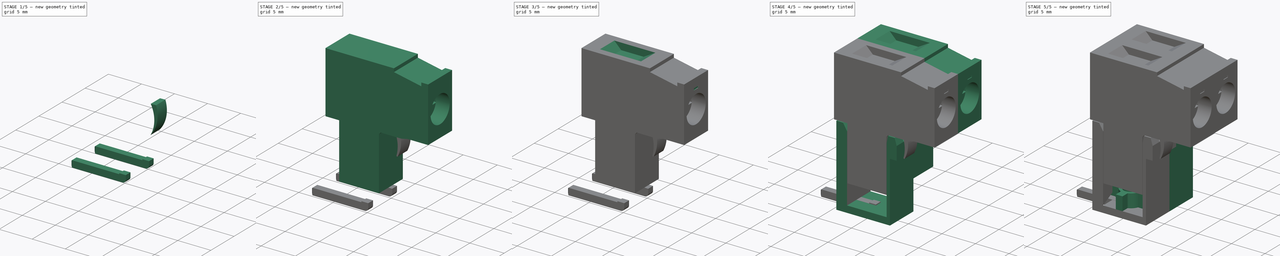
[diagram: build sequence overview — one tinted view per stage of 5, left to right]
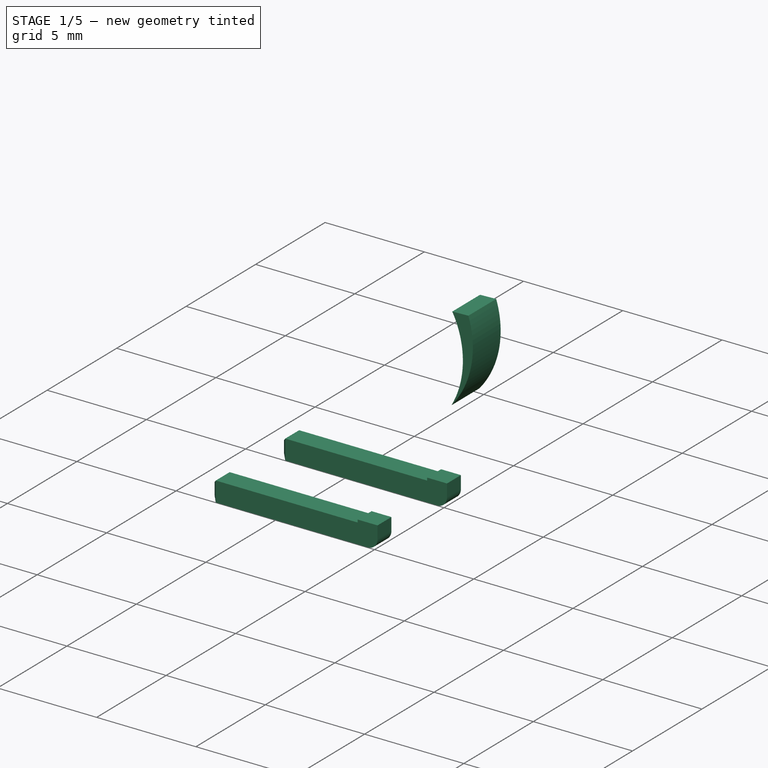
[diagram: stage 1 of 5 — iso view after this stage's code; geometry added in this stage tinted green]
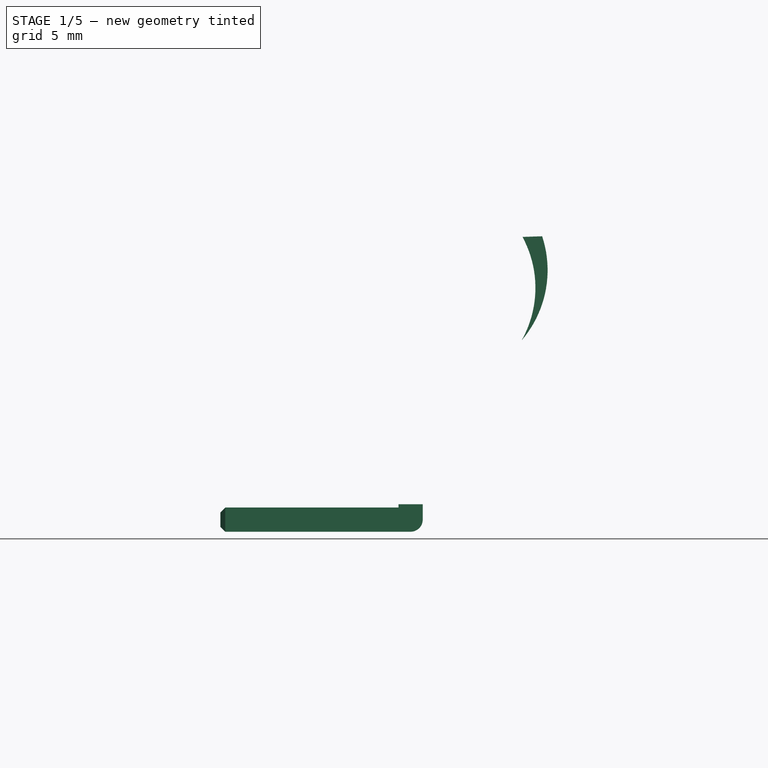
[diagram: stage 1 of 5 — front view after this stage's code; geometry added in this stage tinted green]
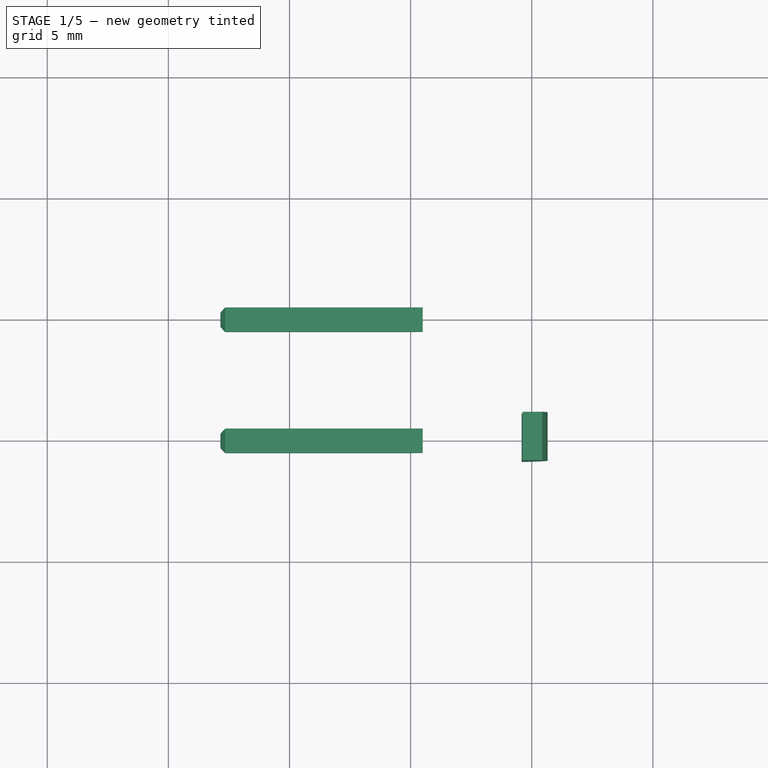
[diagram: stage 1 of 5 — top view after this stage's code; geometry added in this stage tinted green]
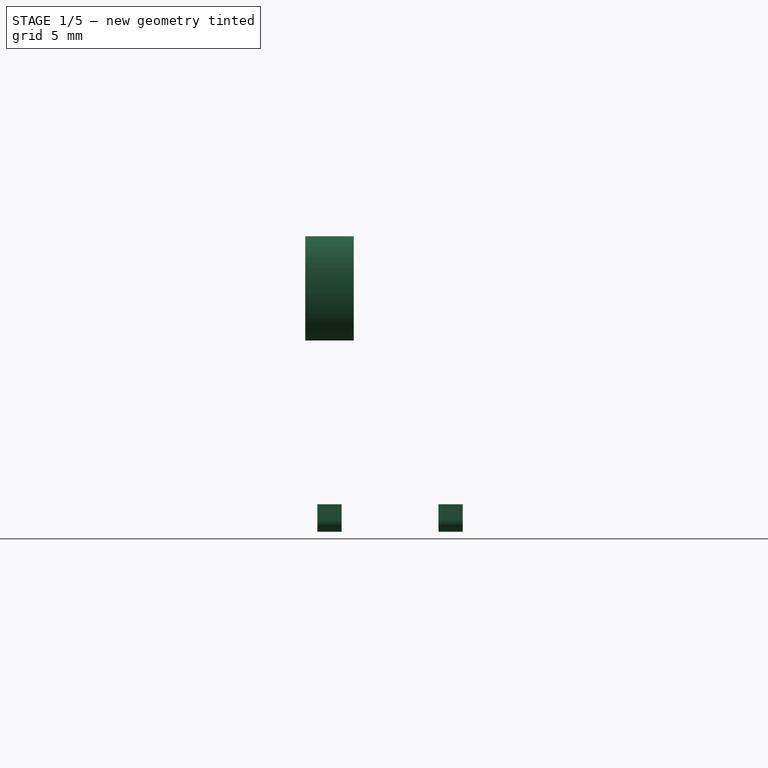
[diagram: stage 1 of 5 — right view after this stage's code; geometry added in this stage tinted green]
FCSTD DOCUMENT  (FreeCAD 0.18R16131 (Git))
Label: MSTBA2_H
License: All rights reserved
LicenseURL: http://en.wikipedia.org/wiki/All_rights_reserved
objects: Sketcher::SketchObject×15, PartDesign::Pocket×8, PartDesign::Pad×5, App::DocumentObjectGroup×3, Part::FeaturePython×3, PartDesign::Draft×2, PartDesign::Fillet×2, Spreadsheet::Sheet×1, Part::MultiFuse×1, Part::Sweep×1, PartDesign::Chamfer×1
note: 51 computed .brp shape members not serialized (recipe doc carries the construction recipe); baked Part::Feature solids carry a one-line shape summary decoded from their .brp

FEATURE [Sketcher::SketchObject] Sketch013
  MapMode = 5
  Placement = pos=(0,0,0) rot=(1,0,0;1.5708rad)
  sketch-geometry (3):
    g0: ArcOfCircle CenterX=1.19032 CenterY=10.8049 CenterZ=0 NormalX=0 NormalY=0 NormalZ=1 AngleXU=0 Radius=4.46344 StartAngle=5.57496 EndAngle=6.60169
    g1: ArcOfCircle CenterX=0.741119 CenterY=10.0718 CenterZ=0 NormalX=0 NormalY=0 NormalZ=1 AngleXU=0 Radius=4.41026 StartAngle=5.76866 EndAngle=6.78056
    g2: LineSegment StartX=4.61703 StartY=12.176 StartZ=0 EndX=5.42927 EndY=12.2026 EndZ=0
  constraints (3):
    c: Coincident(g1,g0)
    c: Coincident(g2,g1)
    c: Coincident(g2,g0)
FEATURE [PartDesign::Pad] Pad005
  Length = 2
  Length2 = 100
  Midplane = true
  Placement = pos=(0,0,0) rot=(1,0,0;1.5708rad)
  Profile = -> Sketch013
  Type = 0
FEATURE [Sketcher::SketchObject] Sketch014
  MapMode = 5
  Placement = pos=(0,0,0) rot=(1,0,0;1.5708rad)
  sketch-geometry (2):
    g0: LineSegment StartX=0 StartY=1.14216 StartZ=0 EndX=0 EndY=0.507006 EndZ=0
    g1: LineSegment StartX=0 StartY=0.507006 StartZ=0 EndX=-7.85076 EndY=0.507006 EndZ=0
  constraints (4):
    c: Vertical(g0)
    c: Coincident(g0,g1)
    c: Horizontal(g1)
    c: PointOnObject(g0,g-2)
FEATURE [Part::Sweep] Sweep
  Frenet = false
  Sections = -> [Sketch002]
  Solid = true
  Spine = -> Sketch014 [Edge1,Edge2]
  Transition = 1
FEATURE [PartDesign::Fillet] Fillet001
  Base = -> Sweep [Edge7]
  Radius = 0.5
FEATURE [PartDesign::Chamfer] Chamfer
  Base = -> Fillet001 [Edge17,Edge24,Edge22,Edge25]
  Size = 0.2
FEATURE [App::DocumentObjectGroup] Group  label="pin"
  Group = -> [Sketch002,Sketch014,Sweep,Fillet001,Chamfer]
FEATURE [Part::FeaturePython] Array  # Draft array (typed FeaturePython)
  Angle = 360
  ArrayType = 0
  Axis = (0,0,1)
  Base = -> Chamfer
  Center = (0,0,0)
  Fuse = false
  IntervalAxis = (0,0,0)
  IntervalX = (1,0,0)
  IntervalY = (0,5,0)
  IntervalZ = (0,0,0)
  NumberPolar = 1
  NumberX = 1
  NumberY = 2
  NumberZ = 1
  expr: NumberY = Spreadsheet.B1
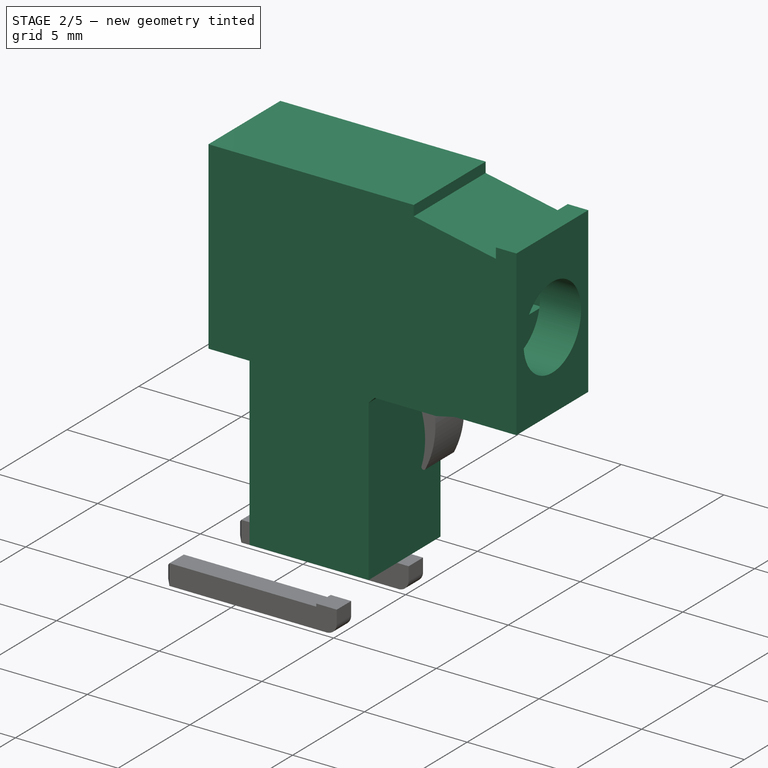
[diagram: stage 2 of 5 — iso view after this stage's code; geometry added in this stage tinted green]
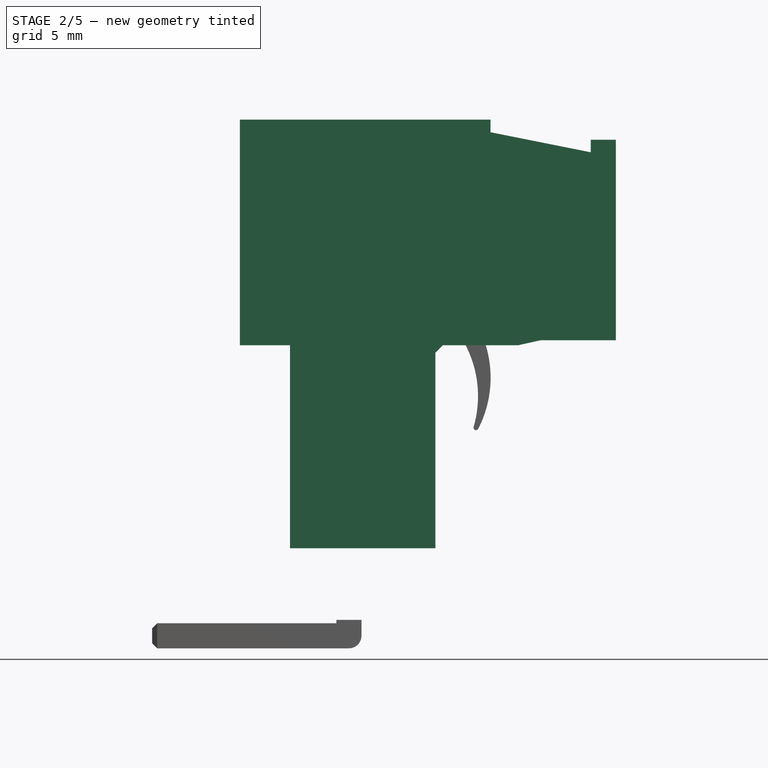
[diagram: stage 2 of 5 — front view after this stage's code; geometry added in this stage tinted green]
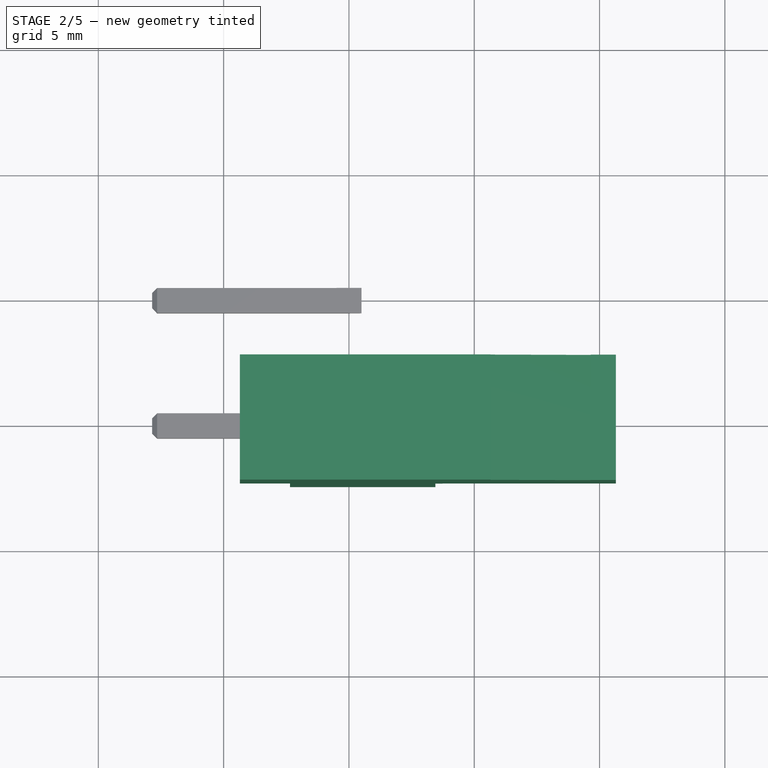
[diagram: stage 2 of 5 — top view after this stage's code; geometry added in this stage tinted green]
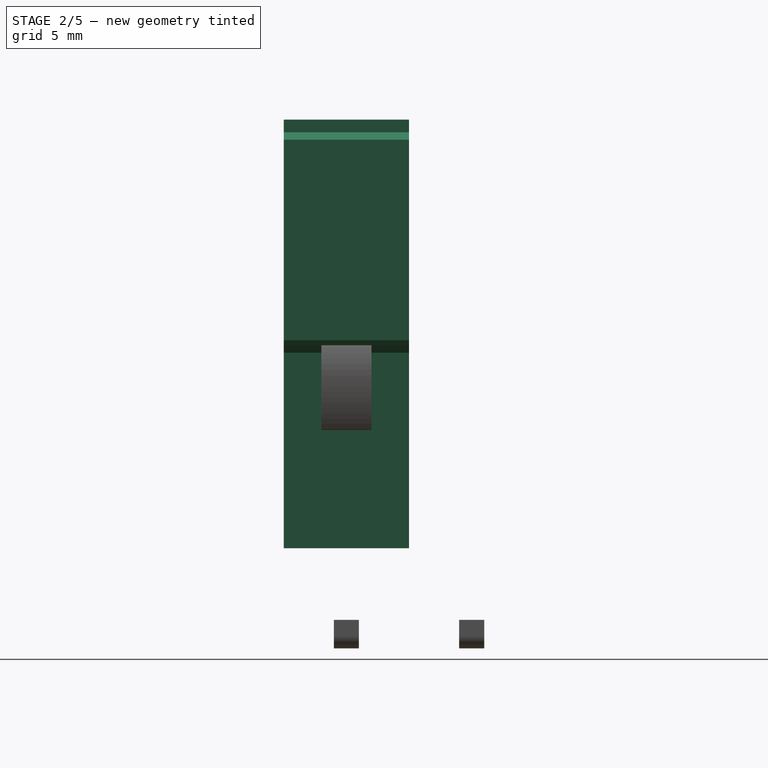
[diagram: stage 2 of 5 — right view after this stage's code; geometry added in this stage tinted green]
FEATURE [Sketcher::SketchObject] Sketch008
  MapMode = 5
  Placement = pos=(0,0,0) rot=(1,0,0;1.5708rad)
  sketch-geometry (15):
    g0: LineSegment StartX=-2.35 StartY=4 StartZ=0 EndX=-2.35 EndY=12.1 EndZ=0
    g1: LineSegment StartX=-2.35 StartY=12.1 StartZ=0 EndX=-4.35 EndY=12.1 EndZ=0
    g2: LineSegment StartX=-4.35 StartY=12.1 StartZ=0 EndX=-4.35 EndY=21.1 EndZ=0
    g3: LineSegment StartX=-4.35 StartY=21.1 StartZ=0 EndX=5.65 EndY=21.1 EndZ=0
    g4: LineSegment StartX=9.65 StartY=19.8 StartZ=0 EndX=9.65 EndY=20.3 EndZ=0
    g5: LineSegment StartX=9.65 StartY=20.3 StartZ=0 EndX=10.65 EndY=20.3 EndZ=0
    g6: LineSegment StartX=10.65 StartY=20.3 StartZ=0 EndX=10.65 EndY=12.3 EndZ=0
    g7: LineSegment StartX=10.65 StartY=12.3 StartZ=0 EndX=7.65 EndY=12.3 EndZ=0
    g8: LineSegment StartX=7.65 StartY=12.3 StartZ=0 EndX=6.75 EndY=12.1 EndZ=0
    g9: LineSegment StartX=6.75 StartY=12.1 StartZ=0 EndX=3.75 EndY=12.1 EndZ=0
    g10: LineSegment StartX=3.75 StartY=12.1 StartZ=0 EndX=3.45 EndY=11.8 EndZ=0
    g11: LineSegment StartX=3.45 StartY=11.8 StartZ=0 EndX=3.45 EndY=4 EndZ=0
    g12: LineSegment StartX=3.45 StartY=4 StartZ=0 EndX=-2.35 EndY=4 EndZ=0
    g13: LineSegment StartX=5.65 StartY=21.1 StartZ=0 EndX=5.65 EndY=20.6 EndZ=0
    g14: LineSegment StartX=5.65 StartY=20.6 StartZ=0 EndX=9.65 EndY=19.8 EndZ=0
  constraints (45):
    c: Vertical(g0)
    c: Coincident(g0,g1)
    c: Horizontal(g1)
    c: Coincident(g1,g2)
    c: Vertical(g2)
    c: Coincident(g2,g3)
    c: Horizontal(g3)
    c: Coincident(g4,g5)
    c: Horizontal(g5)
    c: Coincident(g5,g6)
    c: Vertical(g6)
    c: Coincident(g6,g7)
    c: Horizontal(g7)
    c: Coincident(g7,g8)
    c: Coincident(g8,g9)
    c: Coincident(g9,g10)
    c: Coincident(g10,g11)
    c: Vertical(g11)
    c: Coincident(g11,g12)
    c: Coincident(g12,g0)
    c: Horizontal(g12)
    c: Horizontal(g9)
    c: Vertical(g4)
    c: DistanceY(g-1,g11) = 4
    c: DistanceX(g12) = -5.8
    c: DistanceX(g-1,g0) = -2.35
    c: DistanceY(g-1,g1) = 12.1
    c: DistanceY(g-1,g8) = 12.1
    c: DistanceY(g-1,g6) = 12.3
    c: DistanceY(g2) = 9
    c: DistanceX(g3) = 10
    c: DistanceY(g6) = -8
    c: DistanceX(g5) = 1
    c: DistanceY(g4) = 0.5
    c: Coincident(g3,g13)
    c: Coincident(g13,g14)
    c: Coincident(g14,g4)
    c: Vertical(g13)
    c: DistanceY(g13) = -0.5
    c: DistanceX(g2,g5) = 15
    c: DistanceX(g1) = -2
    c: DistanceX(g7) = -3
    c: DistanceX(g9) = -3
    c: DistanceY(g9,g10) = -0.3
    c: DistanceX(g9,g10) = -0.3
FEATURE [PartDesign::Pad] Pad004
  Length = 5
  Length2 = 100
  Midplane = true
  Placement = pos=(0,0,0) rot=(1,0,0;1.5708rad)
  Profile = -> Sketch008
  Type = 0
FEATURE [Sketcher::SketchObject] Sketch009
  ExternalGeometry = -> [Pad004]
  MapMode = 5
  Placement = pos=(10.65,0,0) rot=(0.707107,0,0.707107;3.14159rad)
  Support = -> [Pad004]
  sketch-geometry (1):
    g0: Circle CenterX=16.1 CenterY=0 CenterZ=0 NormalX=0 NormalY=0 NormalZ=1 AngleXU=0 Radius=2
  constraints (3):
    c: PointOnObject(g0,g-1)
    c: Radius(g0) = 2
    c: DistanceX(g-3,g0) = -5
FEATURE [PartDesign::Pocket] Pocket004
  Length = 2
  Length2 = 100
  Placement = pos=(0,0,0) rot=(1,0,0;1.5708rad)
  Profile = -> Sketch009
  Type = 0
FEATURE [Sketcher::SketchObject] Sketch010
  MapMode = 5
  Placement = pos=(8.65,0,0) rot=(0.707107,0,0.707107;3.14159rad)
  Support = -> [Pocket004]
  sketch-geometry (4):
    g0: LineSegment StartX=15.649 StartY=2.09387 StartZ=0 EndX=16.547 EndY=2.09387 EndZ=0
    g1: LineSegment StartX=16.547 StartY=2.09387 StartZ=0 EndX=16.547 EndY=-2.12596 EndZ=0
    g2: LineSegment StartX=16.547 StartY=-2.12596 StartZ=0 EndX=15.649 EndY=-2.12596 EndZ=0
    g3: LineSegment StartX=15.649 StartY=-2.12596 StartZ=0 EndX=15.649 EndY=2.09387 EndZ=0
  constraints (8):
    c: Coincident(g0,g1)
    c: Coincident(g1,g2)
    c: Coincident(g2,g3)
    c: Coincident(g3,g0)
    c: Horizontal(g0)
    c: Horizontal(g2)
    c: Vertical(g1)
    c: Vertical(g3)
FEATURE [PartDesign::Pocket] Pocket005
  Length = 0.5
  Length2 = 100
  Placement = pos=(0,0,0) rot=(1,0,0;1.5708rad)
  Profile = -> Sketch010
  Type = 0
FEATURE [PartDesign::Fillet] Fillet
  Base = -> Pad005 [Edge1]
  Placement = pos=(0,0,0) rot=(1,0,0;1.5708rad)
  Radius = 0.1
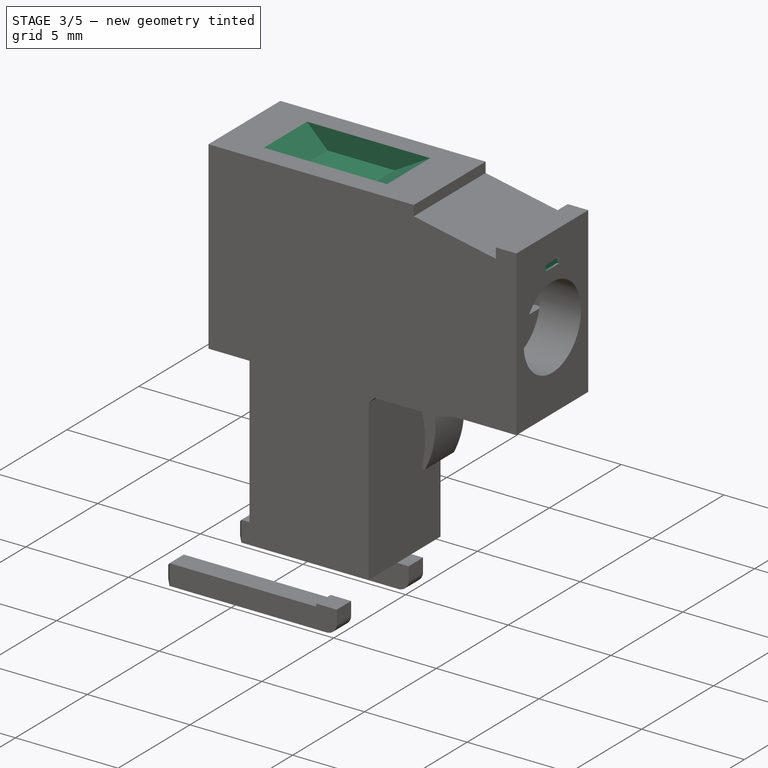
[diagram: stage 3 of 5 — iso view after this stage's code; geometry added in this stage tinted green]
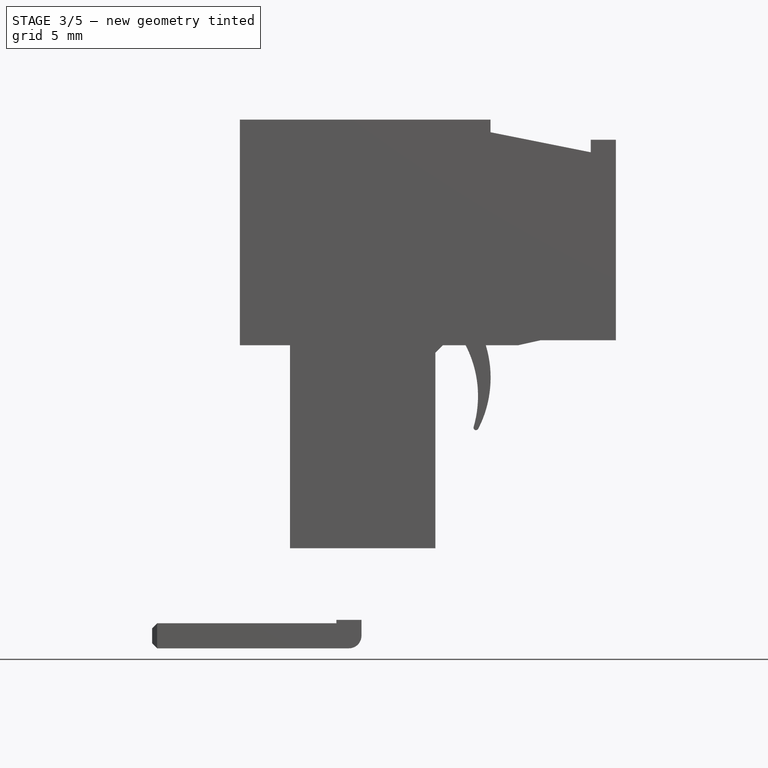
[diagram: stage 3 of 5 — front view after this stage's code; geometry added in this stage tinted green]
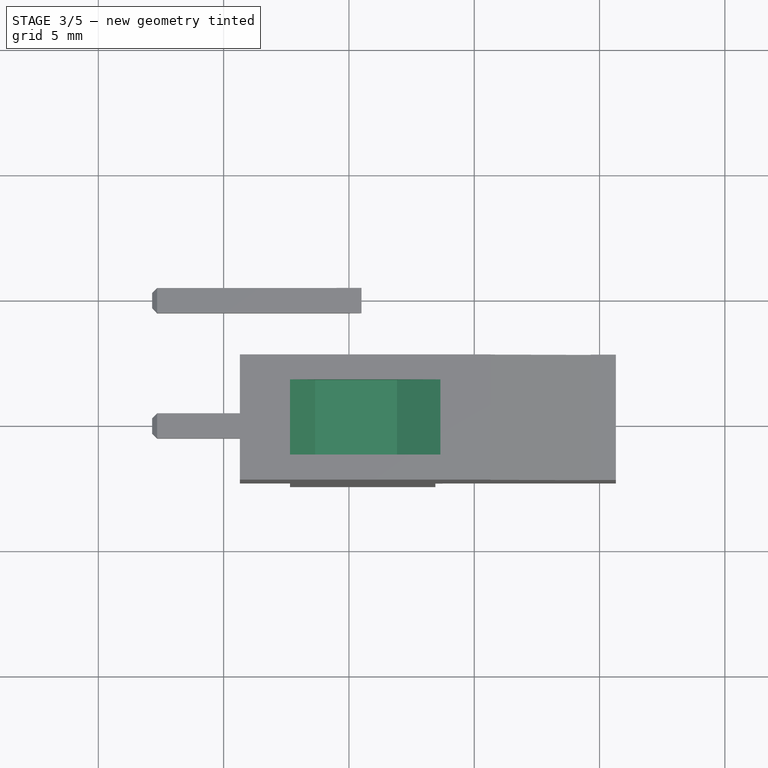
[diagram: stage 3 of 5 — top view after this stage's code; geometry added in this stage tinted green]
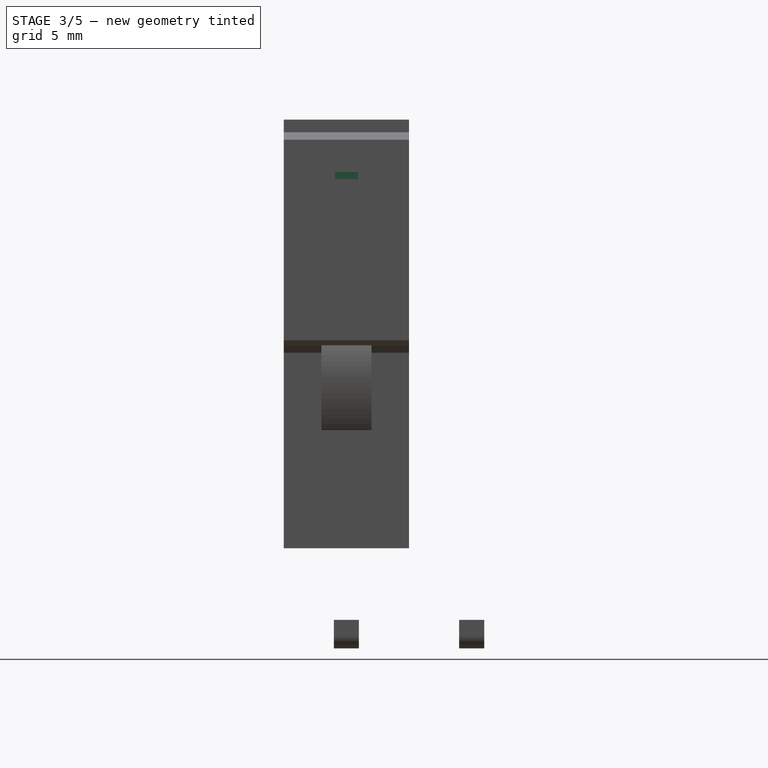
[diagram: stage 3 of 5 — right view after this stage's code; geometry added in this stage tinted green]
FEATURE [Sketcher::SketchObject] Sketch011
  MapMode = 5
  Placement = pos=(10.65,0,0) rot=(0.707107,0,0.707107;3.14159rad)
  Support = -> [Pocket005]
  sketch-geometry (4):
    g0: LineSegment StartX=18.7297 StartY=0.460835 StartZ=0 EndX=19.0153 EndY=0.460835 EndZ=0
    g1: LineSegment StartX=19.0153 StartY=0.460835 StartZ=0 EndX=19.0153 EndY=-0.460835 EndZ=0
    g2: LineSegment StartX=19.0153 StartY=-0.460835 StartZ=0 EndX=18.7297 EndY=-0.460835 EndZ=0
    g3: LineSegment StartX=18.7297 StartY=-0.460835 StartZ=0 EndX=18.7297 EndY=0.460835 EndZ=0
  constraints (9):
    c: Coincident(g0,g1)
    c: Coincident(g1,g2)
    c: Coincident(g2,g3)
    c: Coincident(g3,g0)
    c: Horizontal(g0)
    c: Horizontal(g2)
    c: Vertical(g1)
    c: Vertical(g3)
    c: Symmetric(g1,g0,g-1)
FEATURE [PartDesign::Pocket] Pocket006
  Length = 0.1
  Length2 = 100
  Placement = pos=(0,0,0) rot=(1,0,0;1.5708rad)
  Profile = -> Sketch011
  Type = 0
FEATURE [Sketcher::SketchObject] Sketch012
  ExternalGeometry = -> [Pocket006]
  MapMode = 5
  Placement = pos=(0,8.5e-15,21.1) rot=(0,0,1;3.14159rad)
  Support = -> [Pocket006]
  sketch-geometry (4):
    g0: LineSegment StartX=-3.65 StartY=1.5 StartZ=0 EndX=2.35 EndY=1.5 EndZ=0
    g1: LineSegment StartX=2.35 StartY=1.5 StartZ=0 EndX=2.35 EndY=-1.5 EndZ=0
    g2: LineSegment StartX=2.35 StartY=-1.5 StartZ=0 EndX=-3.65 EndY=-1.5 EndZ=0
    g3: LineSegment StartX=-3.65 StartY=-1.5 StartZ=0 EndX=-3.65 EndY=1.5 EndZ=0
  constraints (12):
    c: Coincident(g0,g1)
    c: Coincident(g1,g2)
    c: Coincident(g2,g3)
    c: Coincident(g3,g0)
    c: Horizontal(g0)
    c: Horizontal(g2)
    c: Vertical(g1)
    c: Vertical(g3)
    c: Symmetric(g0,g1,g-1)
    c: DistanceY(g1) = -3
    c: DistanceX(g0) = 6
    c: DistanceX(g-3,g0) = -2
FEATURE [PartDesign::Pocket] Pocket007
  Length = 1
  Length2 = 100
  Placement = pos=(0,0,0) rot=(1,0,0;1.5708rad)
  Profile = -> Sketch012
  Type = 0
FEATURE [PartDesign::Draft] Draft
  Angle = 60
  Base = -> Pocket007 [Face18]
  NeutralPlane = -> Pocket007 [Face8]
  Placement = pos=(0,0,0) rot=(1,0,0;1.5708rad)
FEATURE [PartDesign::Draft] Draft001
  Angle = 45
  Base = -> Draft [Face20]
  NeutralPlane = -> Draft [Face8]
  Placement = pos=(0,0,0) rot=(1,0,0;1.5708rad)
FEATURE [Part::MultiFuse] Fusion
  Shapes = -> [Draft001,Fillet]
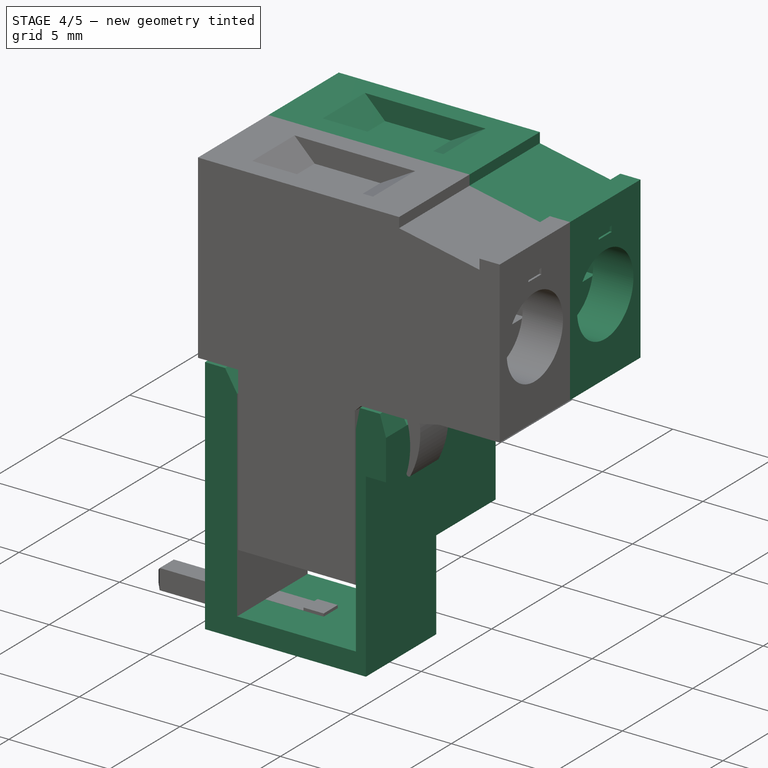
[diagram: stage 4 of 5 — iso view after this stage's code; geometry added in this stage tinted green]
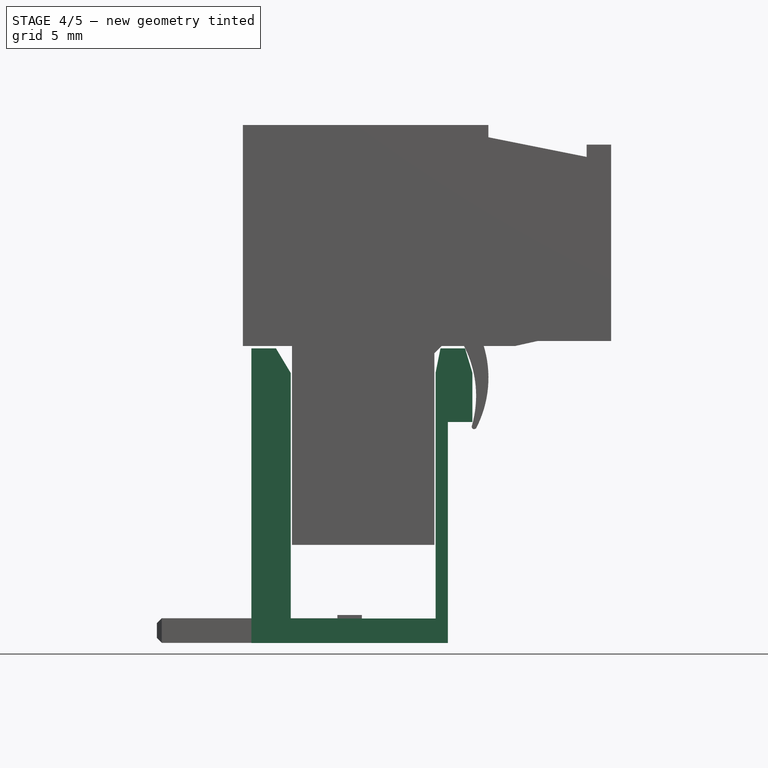
[diagram: stage 4 of 5 — front view after this stage's code; geometry added in this stage tinted green]
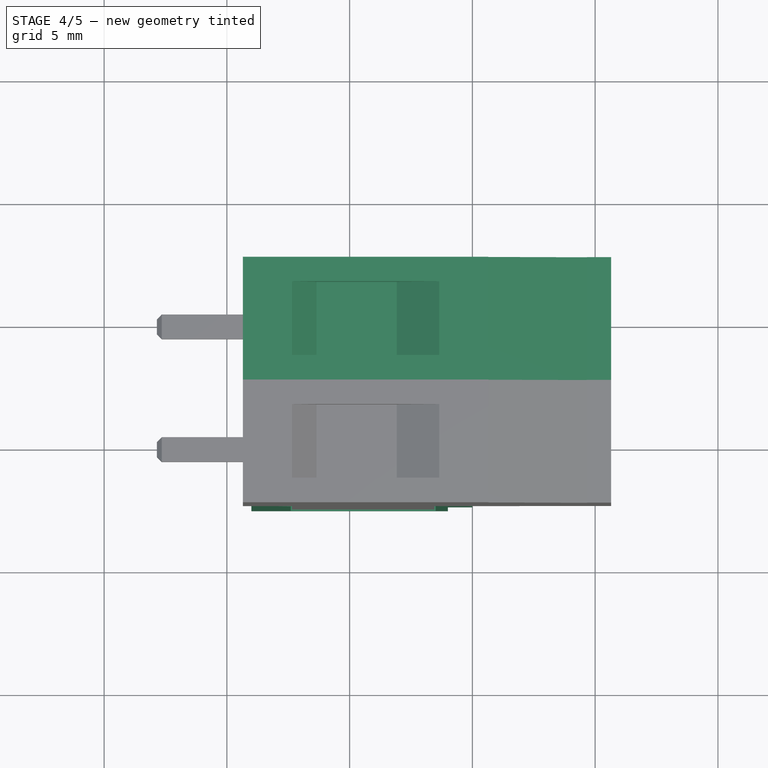
[diagram: stage 4 of 5 — top view after this stage's code; geometry added in this stage tinted green]
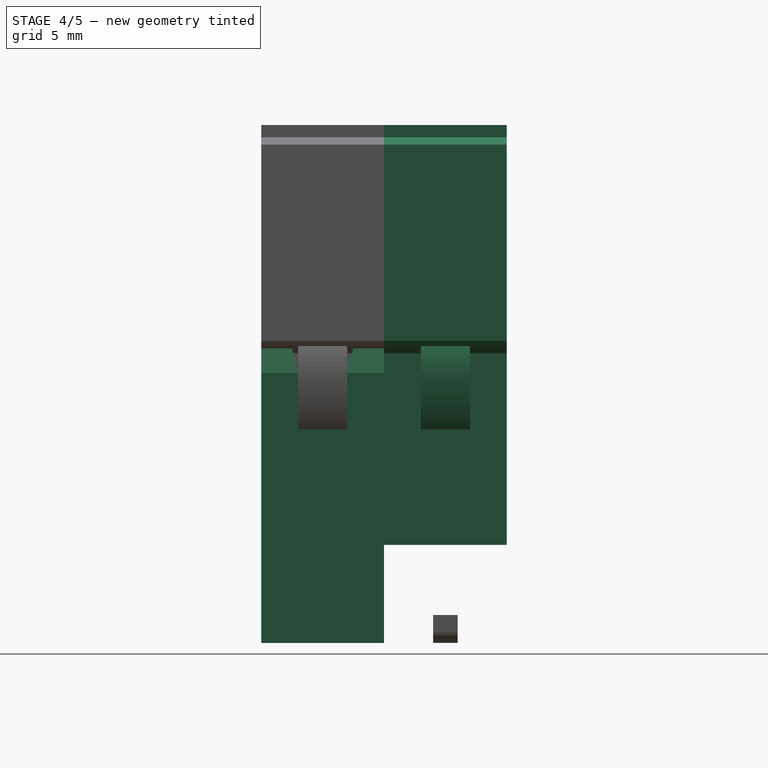
[diagram: stage 4 of 5 — right view after this stage's code; geometry added in this stage tinted green]
FEATURE [Sketcher::SketchObject] Sketch
  MapMode = 5
  Placement = pos=(0,0,0) rot=(1,0,0;1.5708rad)
  sketch-geometry (13):
    g0: LineSegment StartX=-4 StartY=0 StartZ=0 EndX=4 EndY=0 EndZ=0
    g1: LineSegment StartX=4 StartY=0 StartZ=0 EndX=4 EndY=9 EndZ=0
    g2: LineSegment StartX=4 StartY=9 StartZ=0 EndX=5 EndY=9 EndZ=0
    g3: LineSegment StartX=4.7 StartY=12 StartZ=0 EndX=3.7 EndY=12 EndZ=0
    g4: LineSegment StartX=3.7 StartY=12 StartZ=0 EndX=3.5 EndY=11 EndZ=0
    g5: LineSegment StartX=3.5 StartY=11 StartZ=0 EndX=3.5 EndY=1 EndZ=0
    g6: LineSegment StartX=3.5 StartY=1 StartZ=0 EndX=-2.4 EndY=1 EndZ=0
    g7: LineSegment StartX=-2.4 StartY=1 StartZ=0 EndX=-2.4 EndY=11 EndZ=0
    g8: LineSegment StartX=-2.4 StartY=11 StartZ=0 EndX=-3 EndY=12 EndZ=0
    g9: LineSegment StartX=-3 StartY=12 StartZ=0 EndX=-4 EndY=12 EndZ=0
    g10: LineSegment StartX=-4 StartY=12 StartZ=0 EndX=-4 EndY=0 EndZ=0
    g11: LineSegment StartX=5 StartY=9 StartZ=0 EndX=5 EndY=11 EndZ=0
    g12: LineSegment StartX=5 StartY=11 StartZ=0 EndX=4.7 EndY=12 EndZ=0
  constraints (39):
    c: PointOnObject(g0,g-1)
    c: PointOnObject(g0,g-1)
    c: Coincident(g0,g1)
    c: Vertical(g1)
    c: Coincident(g1,g2)
    c: Horizontal(g2)
    c: Horizontal(g3)
    c: Coincident(g4,g5)
    c: Vertical(g5)
    c: Coincident(g5,g6)
    c: Horizontal(g6)
    c: Coincident(g6,g7)
    c: Vertical(g7)
    c: Coincident(g7,g8)
    c: Coincident(g8,g9)
    c: Coincident(g9,g10)
    c: Coincident(g10,g0)
    c: Vertical(g10)
    c: Horizontal(g9)
    c: DistanceX(g0) = 8
    c: Symmetric(g0,g0,g-2)
    c: DistanceY(g10) = -12
    c: DistanceX(g7,g9) = -1.6
    c: DistanceX(g9) = -1
    c: DistanceX(g0,g5) = -0.5
    c: DistanceY(g6,g0) = -1
    c: DistanceY(g1) = 9
    c: DistanceY(g-1,g3) = 12
    c: DistanceY(g3,g4) = -1
    c: DistanceX(g3) = -1
    c: DistanceX(g2) = 1
    c: Coincident(g2,g11)
    c: Vertical(g11)
    c: Coincident(g11,g12)
    c: Coincident(g12,g3)
    c: DistanceY(g3,g11) = -1
    c: DistanceY(g7,g8) = 1
    c: Coincident(g4,g3)
    c: DistanceX(g11,g3) = -0.3
FEATURE [PartDesign::Pad] Pad
  Length = 5
  Length2 = 100
  Midplane = true
  Placement = pos=(0,0,0) rot=(1,0,0;1.5708rad)
  Profile = -> Sketch
  Type = 0
FEATURE [Sketcher::SketchObject] Sketch001
  ExternalGeometry = -> [Pad]
  MapMode = 5
  Placement = pos=(5,0,0) rot=(0.707107,0,0.707107;3.14159rad)
  Support = -> [Pad]
  sketch-geometry (4):
    g0: LineSegment StartX=12 StartY=1.25 StartZ=0 EndX=11 EndY=1.01023 EndZ=0
    g1: LineSegment StartX=11 StartY=1.01023 StartZ=0 EndX=11 EndY=-0.917234 EndZ=0
    g2: LineSegment StartX=11 StartY=-0.917234 StartZ=0 EndX=12 EndY=-1.25 EndZ=0
    g3: LineSegment StartX=12 StartY=-1.25 StartZ=0 EndX=12 EndY=1.25 EndZ=0
  constraints (10):
    c: Coincident(g0,g1)
    c: Vertical(g1)
    c: Coincident(g1,g2)
    c: Coincident(g2,g3)
    c: Vertical(g3)
    c: Coincident(g3,g0)
    c: DistanceY(g2,g-4) = -1.25
    c: DistanceY(g0,g-3) = 1.25
    c: DistanceX(g0,g0) = -1
    c: PointOnObject(g0,g-5)
FEATURE [PartDesign::Pocket] Pocket
  Length = 2
  Length2 = 100
  Placement = pos=(0,0,0) rot=(1,0,0;1.5708rad)
  Profile = -> Sketch001
  Type = 0
FEATURE [Sketcher::SketchObject] Sketch002
  MapMode = 5
  Placement = pos=(0,0,1) rot=(0,0,1;0rad)
  sketch-geometry (4):
    g0: LineSegment StartX=-0.5 StartY=0.5 StartZ=0 EndX=0.5 EndY=0.5 EndZ=0
    g1: LineSegment StartX=0.5 StartY=0.5 StartZ=0 EndX=0.5 EndY=-0.5 EndZ=0
    g2: LineSegment StartX=0.5 StartY=-0.5 StartZ=0 EndX=-0.5 EndY=-0.5 EndZ=0
    g3: LineSegment StartX=-0.5 StartY=-0.5 StartZ=0 EndX=-0.5 EndY=0.5 EndZ=0
  constraints (12):
    c: Coincident(g0,g1)
    c: Coincident(g1,g2)
    c: Coincident(g2,g3)
    c: Coincident(g3,g0)
    c: Horizontal(g0)
    c: Horizontal(g2)
    c: Vertical(g1)
    c: Vertical(g3)
    c: Equal(g1,g0)
    c: Symmetric(g0,g0,g-2)
    c: Symmetric(g1,g0,g-1)
    c: DistanceX(g0) = 1
FEATURE [Spreadsheet::Sheet] Spreadsheet
  cells = A1=rows; B1=2
FEATURE [Sketcher::SketchObject] Sketch003
  MapMode = 5
  Placement = pos=(-4,0,0) rot=(0.707107,0,-0.707107;3.14159rad)
  Support = -> [Pocket]
  sketch-geometry (4):
    g0: LineSegment StartX=-3 StartY=1.5 StartZ=0 EndX=0 EndY=1.5 EndZ=0
    g1: LineSegment StartX=0 StartY=1.5 StartZ=0 EndX=0 EndY=-1.5 EndZ=0
    g2: LineSegment StartX=0 StartY=-1.5 StartZ=0 EndX=-3 EndY=-1.5 EndZ=0
    g3: LineSegment StartX=-3 StartY=-1.5 StartZ=0 EndX=-3 EndY=1.5 EndZ=0
  constraints (12):
    c: Coincident(g0,g1)
    c: Coincident(g1,g2)
    c: Coincident(g2,g3)
    c: Coincident(g3,g0)
    c: Horizontal(g0)
    c: Horizontal(g2)
    c: Vertical(g1)
    c: Vertical(g3)
    c: PointOnObject(g1,g-2)
    c: Symmetric(g0,g1,g-1)
    c: DistanceY(g3) = 3
    c: Equal(g3,g2)
FEATURE [PartDesign::Pocket] Pocket001
  Length = 0.5
  Length2 = 100
  Placement = pos=(0,0,0) rot=(1,0,0;1.5708rad)
  Profile = -> Sketch003
  Type = 0
FEATURE [App::DocumentObjectGroup] Group002  label="connector"
  Group = -> [Pad004,Pocket004,Pocket005,Pocket006,Pocket007,Draft,Pad005,Fusion]
FEATURE [Part::FeaturePython] Array002  # Draft array (typed FeaturePython)
  Angle = 360
  ArrayType = 0
  Axis = (0,0,1)
  Base = -> Fusion
  Center = (0,0,0)
  Fuse = false
  IntervalAxis = (0,0,0)
  IntervalX = (1,0,0)
  IntervalY = (0,5,0)
  IntervalZ = (0,0,0)
  NumberPolar = 1
  NumberX = 1
  NumberY = 2
  NumberZ = 1
  expr: NumberY = Spreadsheet.B1
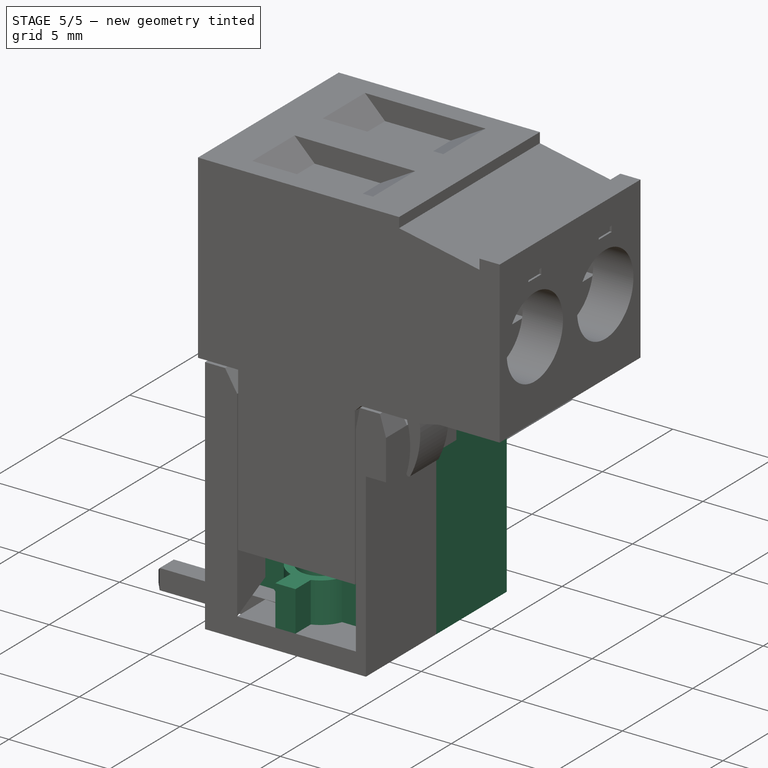
[diagram: stage 5 of 5 — iso view after this stage's code; geometry added in this stage tinted green]
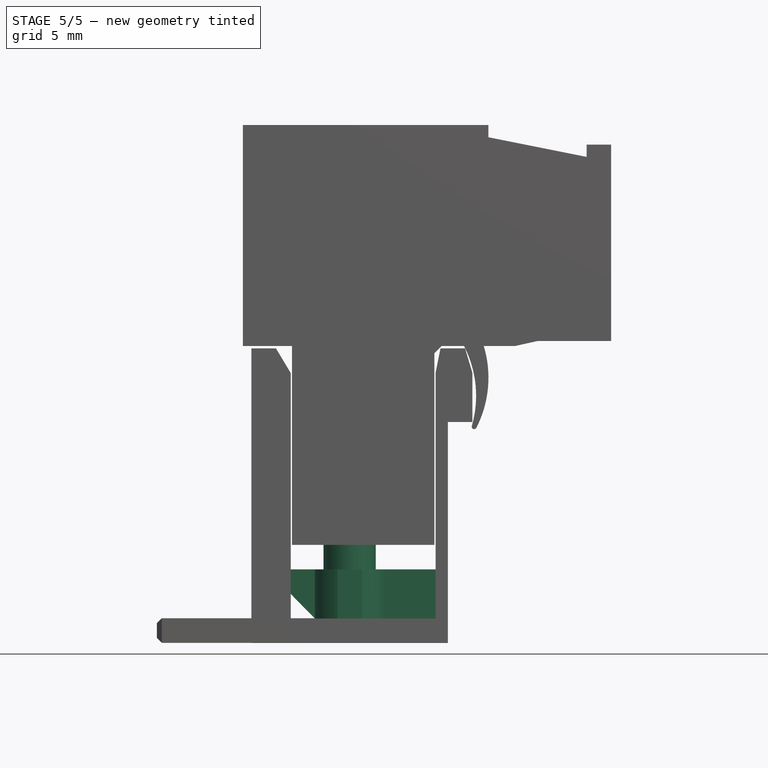
[diagram: stage 5 of 5 — front view after this stage's code; geometry added in this stage tinted green]
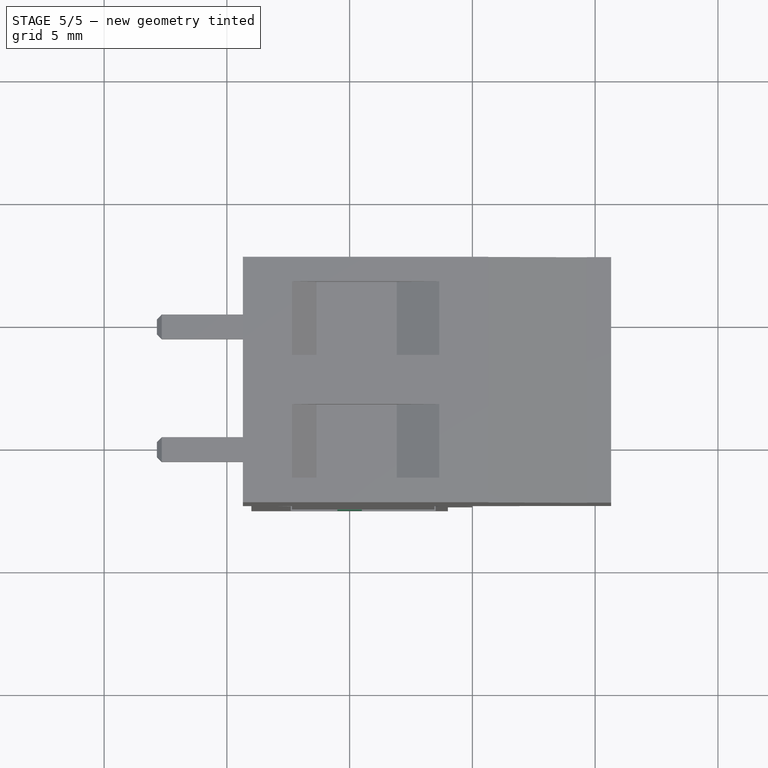
[diagram: stage 5 of 5 — top view after this stage's code; geometry added in this stage tinted green]
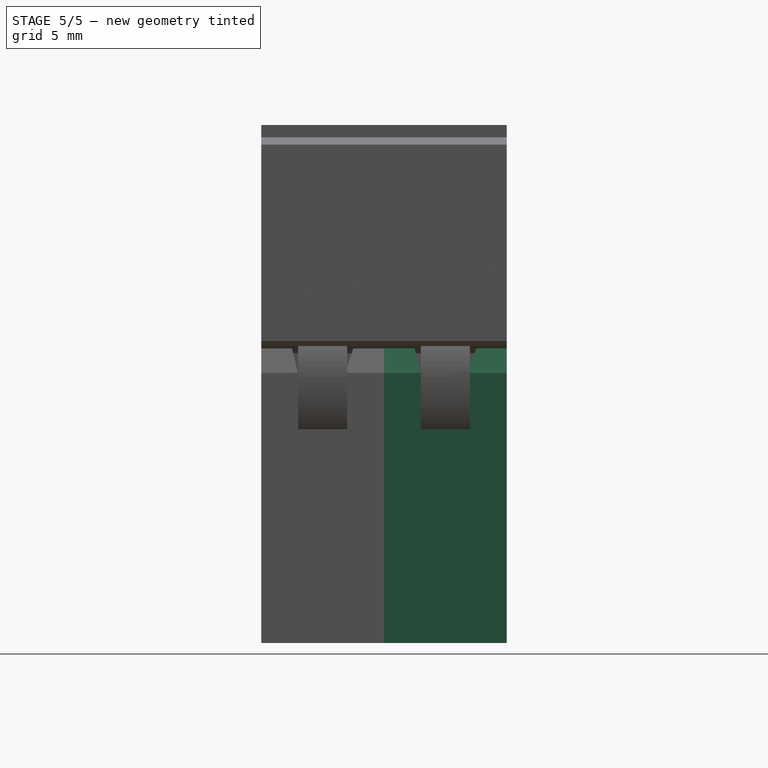
[diagram: stage 5 of 5 — right view after this stage's code; geometry added in this stage tinted green]
FEATURE [Sketcher::SketchObject] Sketch004
  MapMode = 5
  Placement = pos=(0,0,0) rot=(1,0,0;3.14159rad)
  Support = -> [Pocket001]
  sketch-geometry (4):
    g0: LineSegment StartX=-3.5 StartY=1.5 StartZ=0 EndX=1.5 EndY=1.5 EndZ=0
    g1: LineSegment StartX=1.5 StartY=1.5 StartZ=0 EndX=1.5 EndY=-1.5 EndZ=0
    g2: LineSegment StartX=1.5 StartY=-1.5 StartZ=0 EndX=-3.5 EndY=-1.5 EndZ=0
    g3: LineSegment StartX=-3.5 StartY=1.5 StartZ=0 EndX=-3.5 EndY=-1.5 EndZ=0
  constraints (11):
    c: Horizontal(g0)
    c: Coincident(g0,g1)
    c: Vertical(g1)
    c: Coincident(g1,g2)
    c: Horizontal(g2)
    c: DistanceX(g0) = 5
    c: Coincident(g3,g0)
    c: Coincident(g3,g2)
    c: Vertical(g3)
    c: DistanceY(g1) = -3
    c: Symmetric(g0,g1,g-1)
FEATURE [PartDesign::Pocket] Pocket002
  Length = 0.5
  Length2 = 100
  Placement = pos=(0,0,0) rot=(1,0,0;1.5708rad)
  Profile = -> Sketch004
  Type = 0
FEATURE [Sketcher::SketchObject] Sketch005
  MapMode = 5
  Placement = pos=(-3.5,0,-5e-16) rot=(0.707107,0,-0.707107;3.14159rad)
  Support = -> [Pocket002]
  sketch-geometry (4):
    g0: LineSegment StartX=-2 StartY=0.5 StartZ=0 EndX=0 EndY=0.5 EndZ=0
    g1: LineSegment StartX=0 StartY=0.5 StartZ=0 EndX=0 EndY=-0.5 EndZ=0
    g2: LineSegment StartX=0 StartY=-0.5 StartZ=0 EndX=-2 EndY=-0.5 EndZ=0
    g3: LineSegment StartX=-2 StartY=-0.5 StartZ=0 EndX=-2 EndY=0.5 EndZ=0
  constraints (12):
    c: Coincident(g0,g1)
    c: Coincident(g1,g2)
    c: Coincident(g2,g3)
    c: Coincident(g3,g0)
    c: Horizontal(g0)
    c: Horizontal(g2)
    c: Vertical(g1)
    c: Vertical(g3)
    c: Symmetric(g0,g1,g-1)
    c: DistanceY(g3) = 1
    c: DistanceX(g0) = 2
    c: PointOnObject(g0,g-2)
FEATURE [PartDesign::Pocket] Pocket003
  Length = 4
  Length2 = 100
  Placement = pos=(0,0,0) rot=(1,0,0;1.5708rad)
  Profile = -> Sketch005
  Type = 0
FEATURE [Sketcher::SketchObject] Sketch006
  ExternalGeometry = -> [Pocket003]
  MapMode = 5
  Placement = pos=(0,4e-16,1) rot=(0,0,1;3.14159rad)
  Support = -> [Pocket003]
  sketch-geometry (16):
    g0: LineSegment StartX=-3.5 StartY=0.5 StartZ=0 EndX=-1.41421 EndY=0.5 EndZ=0
    g1: LineSegment StartX=2.4 StartY=0.5 StartZ=0 EndX=2.4 EndY=-0.5 EndZ=0
    g2: LineSegment StartX=2.4 StartY=-0.5 StartZ=0 EndX=1.41421 EndY=-0.5 EndZ=0
    g3: LineSegment StartX=-3.5 StartY=-0.5 StartZ=0 EndX=-3.5 EndY=0.5 EndZ=0
    g4: LineSegment StartX=-0.5 StartY=2.5 StartZ=0 EndX=0.5 EndY=2.5 EndZ=0
    g5: LineSegment StartX=0.5 StartY=2.5 StartZ=0 EndX=0.5 EndY=1.41421 EndZ=0
    g6: LineSegment StartX=0.5 StartY=-2.5 StartZ=0 EndX=-0.5 EndY=-2.5 EndZ=0
    g7: LineSegment StartX=-0.5 StartY=-2.5 StartZ=0 EndX=-0.5 EndY=-1.41421 EndZ=0
    g8: ArcOfCircle CenterX=0 CenterY=0 CenterZ=0 NormalX=0 NormalY=0 NormalZ=1 AngleXU=0 Radius=1.5 StartAngle=3.48143 EndAngle=4.37255
    g9: LineSegment StartX=-1.41421 StartY=-0.5 StartZ=0 EndX=-3.5 EndY=-0.5 EndZ=0
    g10: LineSegment StartX=0.5 StartY=-1.41421 StartZ=0 EndX=0.5 EndY=-2.5 EndZ=0
    g11: LineSegment StartX=1.41421 StartY=0.5 StartZ=0 EndX=2.4 EndY=0.5 EndZ=0
    g12: LineSegment StartX=-0.5 StartY=1.41421 StartZ=0 EndX=-0.5 EndY=2.5 EndZ=0
    g13: ArcOfCircle CenterX=0 CenterY=0 CenterZ=0 NormalX=0 NormalY=0 NormalZ=1 AngleXU=0 Radius=1.5 StartAngle=1.91063 EndAngle=2.80176
    g14: ArcOfCircle CenterX=0 CenterY=0 CenterZ=0 NormalX=0 NormalY=0 NormalZ=1 AngleXU=0 Radius=1.5 StartAngle=0.339837 EndAngle=1.23096
    g15: ArcOfCircle CenterX=0 CenterY=0 CenterZ=0 NormalX=0 NormalY=0 NormalZ=1 AngleXU=0 Radius=1.5 StartAngle=5.05223 EndAngle=5.94335
  constraints (42):
    c: Coincident(g11,g1)
    c: Coincident(g1,g2)
    c: Coincident(g9,g3)
    c: Coincident(g3,g0)
    c: Horizontal(g0)
    c: Horizontal(g2)
    c: Vertical(g1)
    c: Vertical(g3)
    c: Coincident(g4,g5)
    c: Coincident(g10,g6)
    c: Coincident(g6,g7)
    c: Coincident(g12,g4)
    c: Horizontal(g4)
    c: Horizontal(g6)
    c: Vertical(g5)
    c: Vertical(g7)
    c: Coincident(g8,g-1)
    c: Radius(g8) = 1.5
    c: Equal(g4,g3)
    c: DistanceX(g4) = 1
    c: Symmetric(g4,g4,g-2)
    c: Symmetric(g0,g9,g-1)
    c: PointOnObject(g10,g-6)
    c: PointOnObject(g0,g-3)
    c: PointOnObject(g11,g-5)
    c: PointOnObject(g4,g-4)
    c: Tangent(g2,g9)
    c: Tangent(g5,g10)
    c: Coincident(g8,g9)
    c: Coincident(g13,g0)
    c: Equal(g8,g13)
    c: Coincident(g14,g5)
    c: Coincident(g13,g12)
    c: Coincident(g8,g13)
    c: Equal(g8,g14)
    c: Coincident(g15,g2)
    c: Coincident(g14,g11)
    c: Coincident(g8,g14)
    c: Equal(g8,g15)
    c: Coincident(g8,g7)
    c: Coincident(g15,g10)
    c: Coincident(g8,g15)
FEATURE [PartDesign::Pad] Pad002
  Length = 2
  Length2 = 100
  Placement = pos=(0,0,0) rot=(1,0,0;1.5708rad)
  Profile = -> Sketch006
  Type = 0
FEATURE [Sketcher::SketchObject] Sketch007
  MapMode = 5
  Placement = pos=(0,6.7e-15,3) rot=(0,0,1;3.14159rad)
  Support = -> [Pad002]
  sketch-geometry (1):
    g0: Circle CenterX=0 CenterY=0 CenterZ=0 NormalX=0 NormalY=0 NormalZ=1 AngleXU=0 Radius=1.06497
  constraints (1):
    c: Coincident(g0,g-1)
FEATURE [PartDesign::Pad] Pad003
  Length = 1
  Length2 = 100
  Placement = pos=(0,0,0) rot=(1,0,0;1.5708rad)
  Profile = -> Sketch007
  Type = 0
FEATURE [App::DocumentObjectGroup] Group001  label="body"
  Group = -> [Pad,Pocket,Pocket001,Pocket002,Pocket003,Pad002,Pad003]
FEATURE [Part::FeaturePython] Array001  # Draft array (typed FeaturePython)
  Angle = 360
  ArrayType = 0
  Axis = (0,0,1)
  Base = -> Pad003
  Center = (0,0,0)
  Fuse = false
  IntervalAxis = (0,0,0)
  IntervalX = (1,0,0)
  IntervalY = (0,5,0)
  IntervalZ = (0,0,0)
  NumberPolar = 1
  NumberX = 1
  NumberY = 2
  NumberZ = 1
  expr: NumberY = Spreadsheet.B1
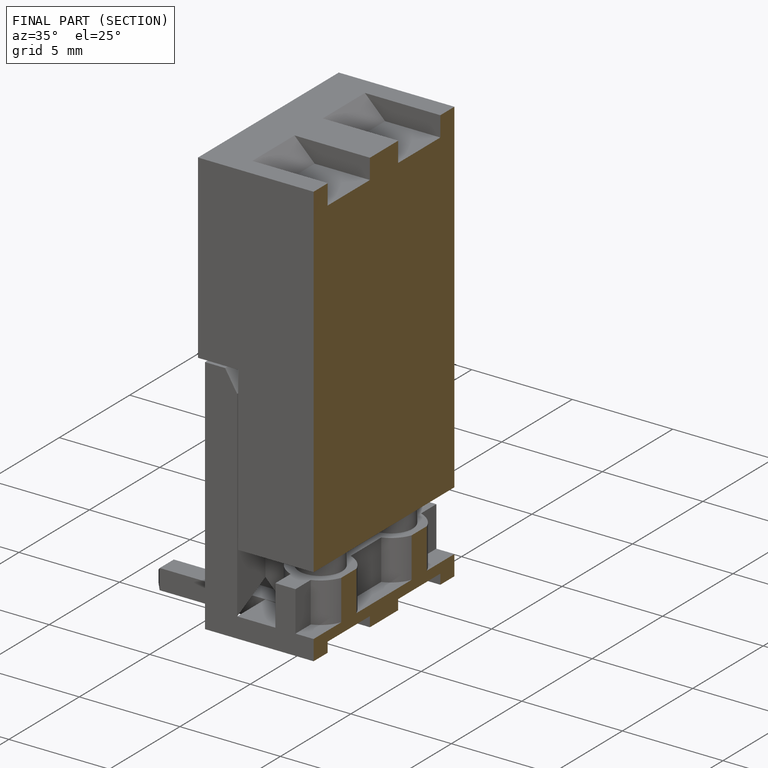
[diagram: finished part — half-section view (interior)]
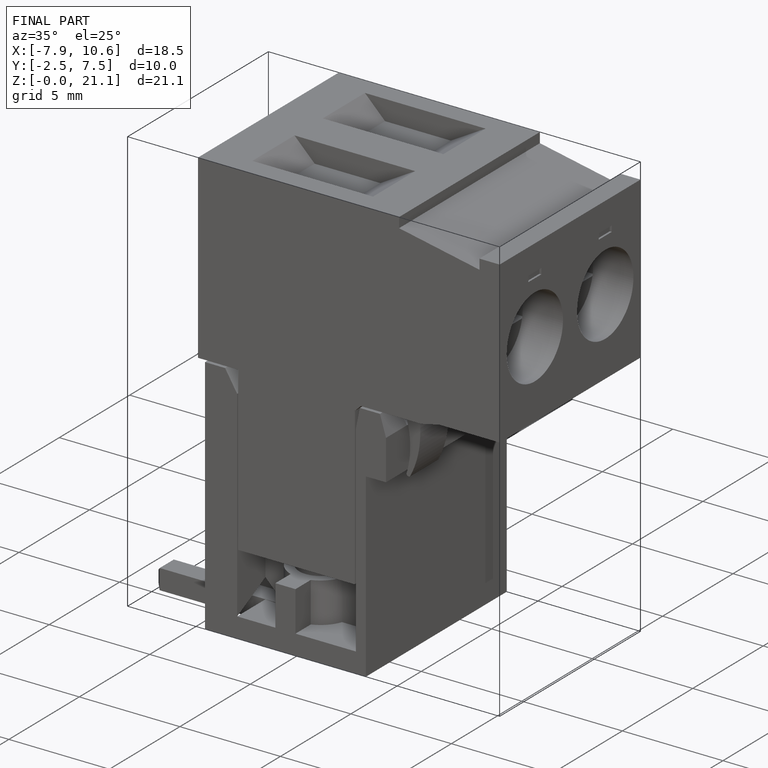
[diagram: finished part — iso view with bounding-box wireframe]
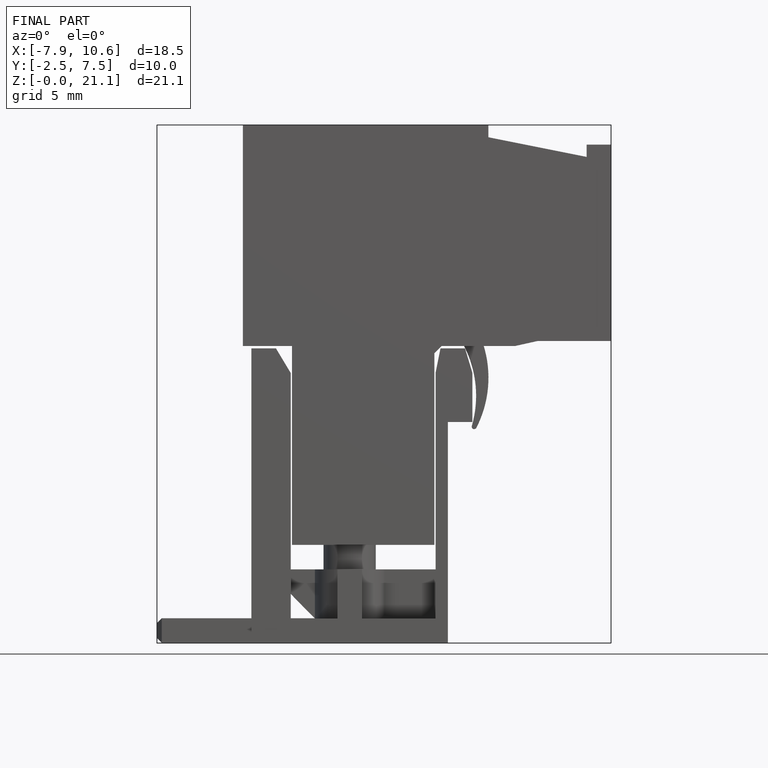
[diagram: finished part — front view with bounding-box wireframe]
